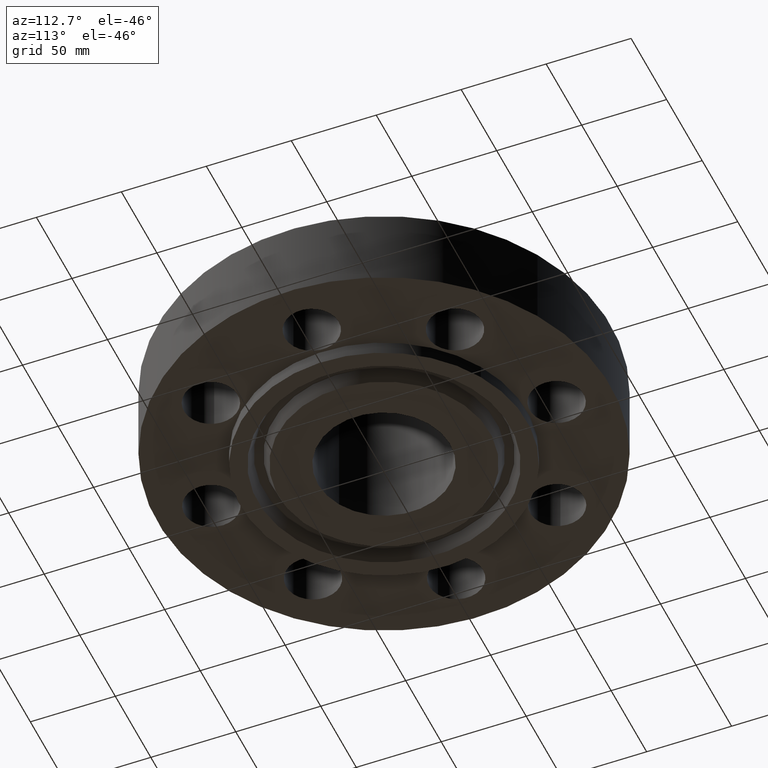
[diagram: clean part render]
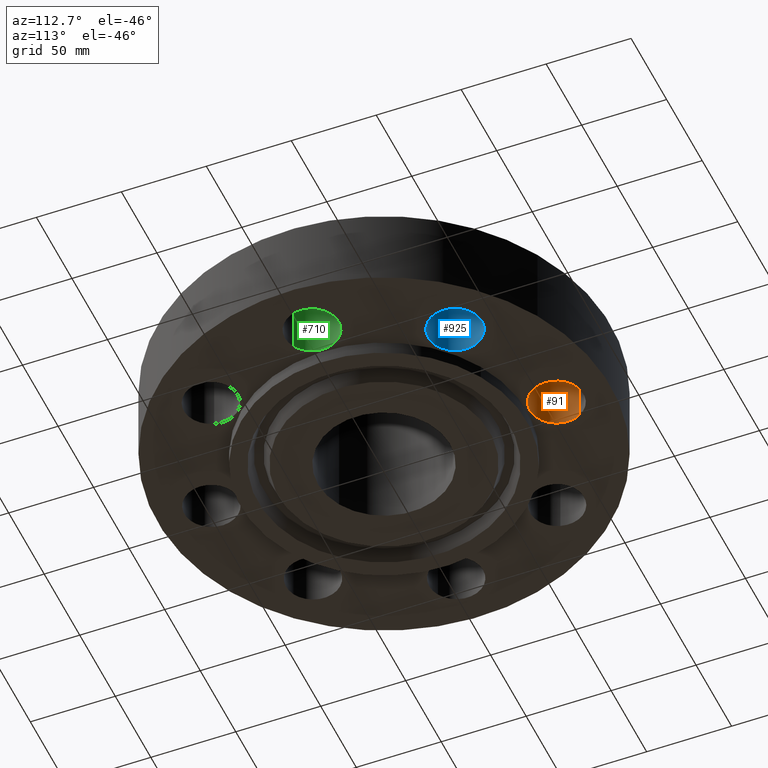
[diagram: same view with three faces highlighted in distinct colors, each labeled with its STEP entity id]
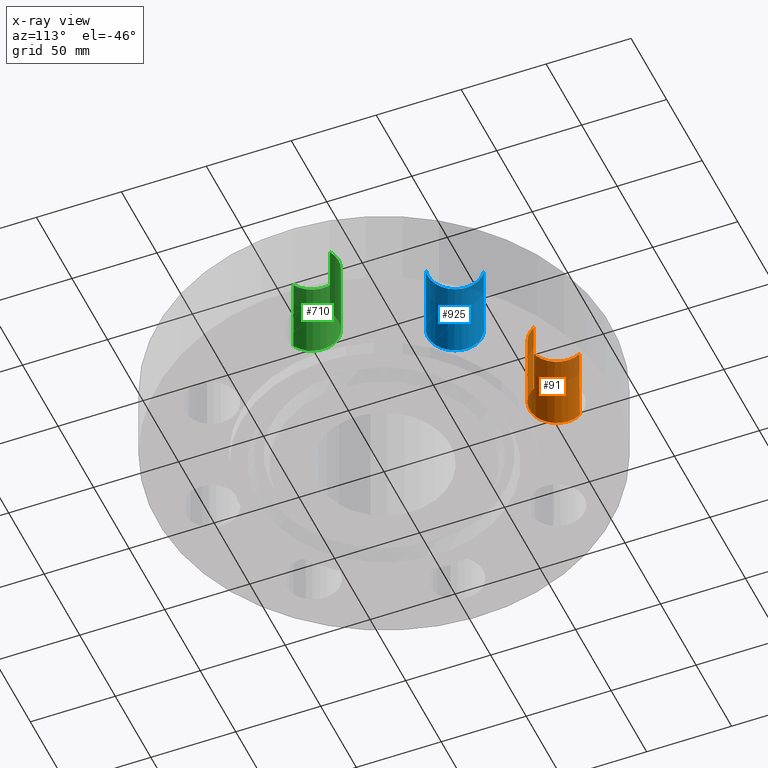
[diagram: x-ray of the same camera — body ghosted, the three highlighted faces saturated]
A machine part, auxiliary view with three faces highlighted in distinct colors.
The next image is the same camera in x-ray (body ghosted, the three faces saturated) — at least one of them is partly hidden behind the body in this view.
Their STEP definitions:

[orange] entity #91 — the highlighted cylindrical surface (edge-blend (fillet) strip) has radius 15.875 mm, axis along (0, -0, -1).
#38=AXIS2_PLACEMENT_3D('Cylinder Axis2P3D',#35,#36,#37) ;
#77=AXIS2_PLACEMENT_3D('Circle Axis2P3D',#75,#76,$) ;
#82=AXIS2_PLACEMENT_3D('Circle Axis2P3D',#80,#81,$) ;
#35=CARTESIAN_POINT('Axis2P3D Location',(0.,4.00000000002,1.87606299213)) ;
#40=CARTESIAN_POINT('Line Origine',(-0.548489101184,4.29964096164,0.940000000004)) ;
#44=CARTESIAN_POINT('Vertex',(-0.548489101184,4.29964096164,0.)) ;
#46=CARTESIAN_POINT('Vertex',(-0.548489101184,4.29964096164,1.88000000001)) ;
#53=CARTESIAN_POINT('Vertex',(0.548489101184,3.70035903839,0.)) ;
#56=CARTESIAN_POINT('Line Origine',(0.548489101184,3.70035903839,0.940000000004)) ;
#60=CARTESIAN_POINT('Vertex',(0.548489101184,3.70035903839,1.88000000001)) ;
#75=CARTESIAN_POINT('Axis2P3D Location',(0.,4.00000000002,0.)) ;
#80=CARTESIAN_POINT('Axis2P3D Location',(0.,4.00000000002,1.88000000001)) ;
#36=DIRECTION('Axis2P3D Direction',(0.,-0.,-0.0393700787402)) ;
#37=DIRECTION('Axis2P3D XDirection',(0.0345504945626,-0.0188750212049,0.)) ;
#41=DIRECTION('Vector Direction',(0.,0.,-0.0393700787402)) ;
#57=DIRECTION('Vector Direction',(0.,0.,-0.0393700787402)) ;
#76=DIRECTION('Axis2P3D Direction',(0.,-0.,-0.0393700787402)) ;
#81=DIRECTION('Axis2P3D Direction',(0.,-0.,-0.0393700787402)) ;
#42=VECTOR('Line Direction',#41,0.0393700787402) ;
#58=VECTOR('Line Direction',#57,0.0393700787402) ;
#86=ORIENTED_EDGE('',*,*,#62,.F.) ;
#87=ORIENTED_EDGE('',*,*,#79,.T.) ;
#88=ORIENTED_EDGE('',*,*,#48,.T.) ;
#89=ORIENTED_EDGE('',*,*,#84,.F.) ;
#91=ADVANCED_FACE('PartBody',(#90),#39,.F.) ;
#78=CIRCLE('generated circle',#77,0.625000000003) ;
#83=CIRCLE('generated circle',#82,0.625000000003) ;
#39=CYLINDRICAL_SURFACE('generated cylinder',#38,0.625000000003) ;
#48=EDGE_CURVE('',#45,#47,#43,.F.) ;
#62=EDGE_CURVE('',#54,#61,#59,.F.) ;
#79=EDGE_CURVE('',#54,#45,#78,.T.) ;
#84=EDGE_CURVE('',#61,#47,#83,.T.) ;
#85=EDGE_LOOP('',(#86,#87,#88,#89)) ;
#90=FACE_OUTER_BOUND('',#85,.T.) ;
#43=LINE('Line',#40,#42) ;
#59=LINE('Line',#56,#58) ;
#45=VERTEX_POINT('',#44) ;
#47=VERTEX_POINT('',#46) ;
#54=VERTEX_POINT('',#53) ;
#61=VERTEX_POINT('',#60) ;

[blue] entity #925 — the highlighted cylindrical surface (edge-blend (fillet) strip) has radius 15.875 mm, axis along (0, -0, -1).
#509=AXIS2_PLACEMENT_3D('Circle Axis2P3D',#507,#508,$) ;
#886=AXIS2_PLACEMENT_3D('Cylinder Axis2P3D',#883,#884,#885) ;
#916=AXIS2_PLACEMENT_3D('Circle Axis2P3D',#914,#915,$) ;
#502=CARTESIAN_POINT('Vertex',(2.65246491779,3.4281456435,0.)) ;
#504=CARTESIAN_POINT('Vertex',(3.00438933172,2.22870860601,0.)) ;
#507=CARTESIAN_POINT('Axis2P3D Location',(2.82842712476,2.82842712476,0.)) ;
#883=CARTESIAN_POINT('Axis2P3D Location',(2.82842712476,2.82842712476,1.87606299213)) ;
#888=CARTESIAN_POINT('Line Origine',(2.65246491779,3.4281456435,0.940000000004)) ;
#892=CARTESIAN_POINT('Vertex',(2.65246491779,3.4281456435,1.88000000001)) ;
#895=CARTESIAN_POINT('Line Origine',(3.00438933172,2.22870860601,0.940000000004)) ;
#899=CARTESIAN_POINT('Vertex',(3.00438933172,2.22870860601,1.88000000001)) ;
#914=CARTESIAN_POINT('Axis2P3D Location',(2.82842712476,2.82842712476,1.88000000001)) ;
#508=DIRECTION('Axis2P3D Direction',(0.,0.,-0.0393700787402)) ;
#884=DIRECTION('Axis2P3D Direction',(0.,-0.,-0.0393700787402)) ;
#885=DIRECTION('Axis2P3D XDirection',(0.0110842335096,-0.0377775444876,0.)) ;
#889=DIRECTION('Vector Direction',(0.,0.,-0.0393700787402)) ;
#896=DIRECTION('Vector Direction',(0.,0.,-0.0393700787402)) ;
#915=DIRECTION('Axis2P3D Direction',(0.,-0.,-0.0393700787402)) ;
#890=VECTOR('Line Direction',#889,0.0393700787402) ;
#897=VECTOR('Line Direction',#896,0.0393700787402) ;
#920=ORIENTED_EDGE('',*,*,#901,.F.) ;
#921=ORIENTED_EDGE('',*,*,#511,.T.) ;
#922=ORIENTED_EDGE('',*,*,#894,.T.) ;
#923=ORIENTED_EDGE('',*,*,#918,.F.) ;
#925=ADVANCED_FACE('PartBody',(#924),#887,.F.) ;
#510=CIRCLE('generated circle',#509,0.625000000002) ;
#917=CIRCLE('generated circle',#916,0.625000000002) ;
#887=CYLINDRICAL_SURFACE('generated cylinder',#886,0.625000000002) ;
#511=EDGE_CURVE('',#505,#503,#510,.T.) ;
#894=EDGE_CURVE('',#503,#893,#891,.F.) ;
#901=EDGE_CURVE('',#505,#900,#898,.F.) ;
#918=EDGE_CURVE('',#900,#893,#917,.T.) ;
#919=EDGE_LOOP('',(#920,#921,#922,#923)) ;
#924=FACE_OUTER_BOUND('',#919,.T.) ;
#891=LINE('Line',#888,#890) ;
#898=LINE('Line',#895,#897) ;
#503=VERTEX_POINT('',#502) ;
#505=VERTEX_POINT('',#504) ;
#893=VERTEX_POINT('',#892) ;
#900=VERTEX_POINT('',#899) ;

[green] entity #710 — the highlighted cylindrical surface (edge-blend (fillet) strip) has radius 15.875 mm, axis along (0, -0, -1).
#527=AXIS2_PLACEMENT_3D('Circle Axis2P3D',#525,#526,$) ;
#671=AXIS2_PLACEMENT_3D('Cylinder Axis2P3D',#668,#669,#670) ;
#701=AXIS2_PLACEMENT_3D('Circle Axis2P3D',#699,#700,$) ;
#520=CARTESIAN_POINT('Vertex',(4.29964096164,0.548489101184,0.)) ;
#522=CARTESIAN_POINT('Vertex',(3.70035903839,-0.548489101184,0.)) ;
#525=CARTESIAN_POINT('Axis2P3D Location',(4.00000000002,5.59482469102E-016,0.)) ;
#668=CARTESIAN_POINT('Axis2P3D Location',(4.00000000002,2.4492935983E-016,1.87606299213)) ;
#673=CARTESIAN_POINT('Line Origine',(4.29964096164,0.548489101184,0.940000000004)) ;
#677=CARTESIAN_POINT('Vertex',(4.29964096164,0.548489101184,1.88000000001)) ;
#680=CARTESIAN_POINT('Line Origine',(3.70035903839,-0.548489101184,0.940000000004)) ;
#684=CARTESIAN_POINT('Vertex',(3.70035903839,-0.548489101184,1.88000000001)) ;
#699=CARTESIAN_POINT('Axis2P3D Location',(4.00000000002,2.4492935983E-016,1.88000000001)) ;
#526=DIRECTION('Axis2P3D Direction',(0.,0.,-0.0393700787402)) ;
#669=DIRECTION('Axis2P3D Direction',(0.,-0.,-0.0393700787402)) ;
#670=DIRECTION('Axis2P3D XDirection',(-0.0188750212049,-0.0345504945626,0.)) ;
#674=DIRECTION('Vector Direction',(0.,0.,-0.0393700787402)) ;
#681=DIRECTION('Vector Direction',(0.,0.,-0.0393700787402)) ;
#700=DIRECTION('Axis2P3D Direction',(0.,-0.,-0.0393700787402)) ;
#675=VECTOR('Line Direction',#674,0.0393700787402) ;
#682=VECTOR('Line Direction',#681,0.0393700787402) ;
#705=ORIENTED_EDGE('',*,*,#686,.F.) ;
#706=ORIENTED_EDGE('',*,*,#529,.T.) ;
#707=ORIENTED_EDGE('',*,*,#679,.T.) ;
#708=ORIENTED_EDGE('',*,*,#703,.F.) ;
#710=ADVANCED_FACE('PartBody',(#709),#672,.F.) ;
#528=CIRCLE('generated circle',#527,0.625000000003) ;
#702=CIRCLE('generated circle',#701,0.625000000003) ;
#672=CYLINDRICAL_SURFACE('generated cylinder',#671,0.625000000003) ;
#529=EDGE_CURVE('',#523,#521,#528,.T.) ;
#679=EDGE_CURVE('',#521,#678,#676,.F.) ;
#686=EDGE_CURVE('',#523,#685,#683,.F.) ;
#703=EDGE_CURVE('',#685,#678,#702,.T.) ;
#704=EDGE_LOOP('',(#705,#706,#707,#708)) ;
#709=FACE_OUTER_BOUND('',#704,.T.) ;
#676=LINE('Line',#673,#675) ;
#683=LINE('Line',#680,#682) ;
#521=VERTEX_POINT('',#520) ;
#523=VERTEX_POINT('',#522) ;
#678=VERTEX_POINT('',#677) ;
#685=VERTEX_POINT('',#684) ;